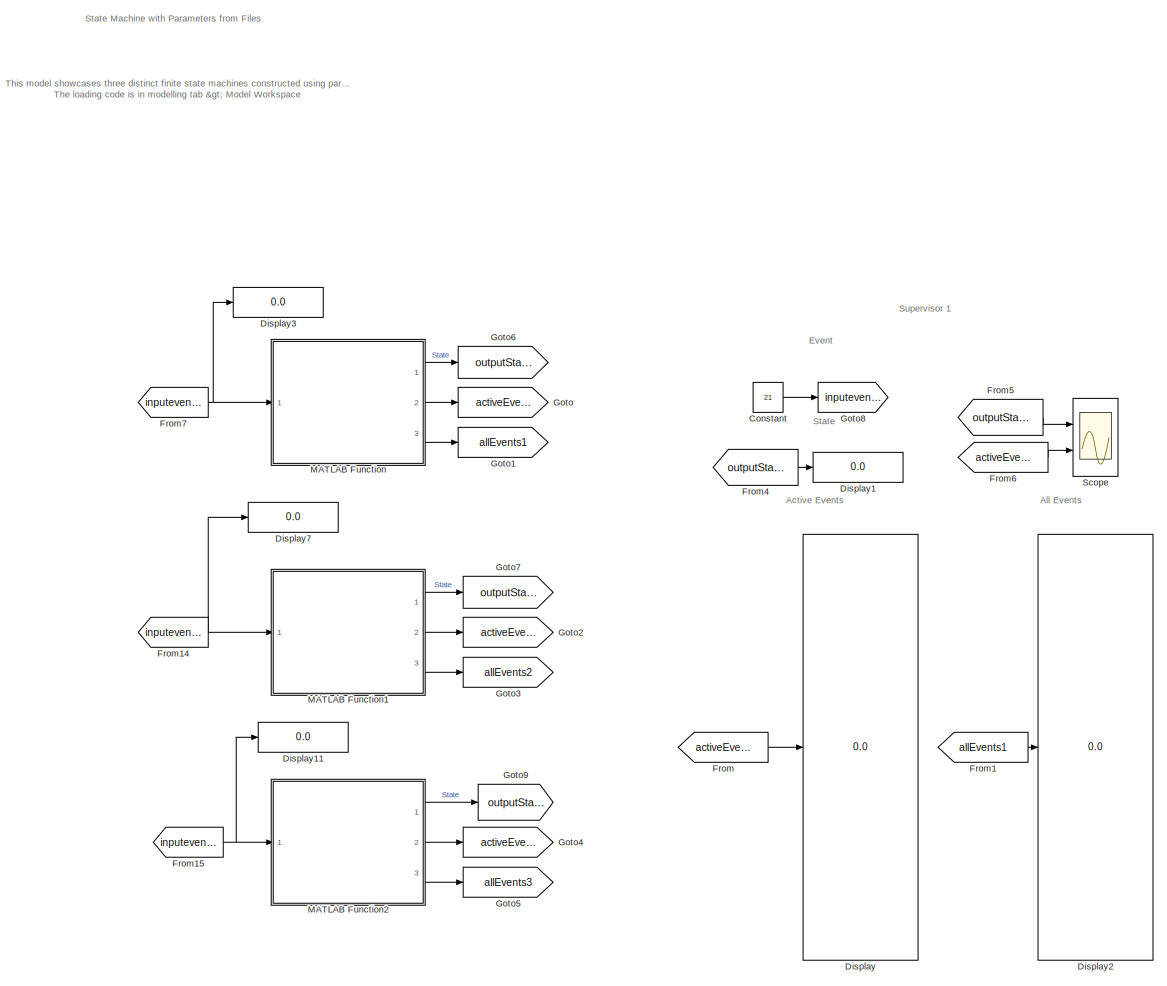
[diagram: root canvas - part 1/2, left side, full height]
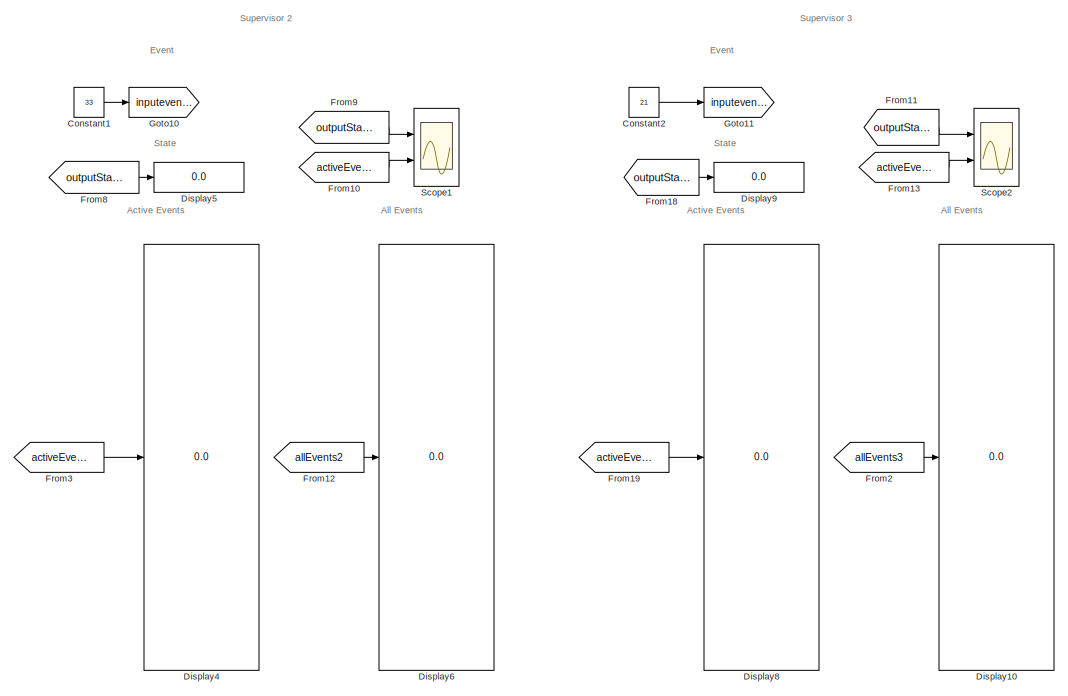
[diagram: root canvas - part 2/2, middle right region]
MODEL slx_2cbc67e93fb0
KIND model
CONFIG AbsTol = auto
CONFIG EnableMultiTasking = off
CONFIG FixedStep = auto
CONFIG MaxStep = auto
CONFIG MinStep = auto
CONFIG RelTol = 1e-3
CONFIG SampleTimeConstraint = Unconstrained
CONFIG SolverName = VariableStepAuto
CONFIG StartTime = 0.0
CONFIG StopTime = inf
WORKSPACE source: MATLAB code (in-file)
WORKSPACE code: addpath model
WORKSPACE code: addpath utils
WORKSPACE utils = StateMachineUtils
WORKSPACE utils = utils.loadEventsInAds('resources/tct/ALLEVENT.ADS')
WORKSPACE utils = utils.loadDisabledEventsInPdt('resources/tct/supervisor1/DATA_SIMSUP1_MG1.PDT')
WORKSPACE utils = utils.loadTransitionsInAds('resources/tct/supervisor1/SIMSUP1_MG1.ADS')
WORKSPACE encodedStates1 = StateEncoder.encode(utils.statesArray)
WORKSPACE transitions1 = utils.transitions
WORKSPACE allEvents1 = utils.eventsArray
WORKSPACE utils2 = StateMachineUtils
WORKSPACE utils2 = utils2.loadEventsInAds('resources/tct/ALLEVENT.ADS')
WORKSPACE utils2 = utils2.loadDisabledEventsInPdt('resources/tct/supervisor2/DATA_SIMSUP2_MG1.PDT')
WORKSPACE utils2 = utils2.loadTransitionsInAds('resources/tct/supervisor2/SIMSUP2_MG1.ADS')
WORKSPACE encodedStates2 = StateEncoder.encode(utils2.statesArray)
WORKSPACE transitions2 = utils2.transitions
WORKSPACE allEvents2 = utils2.eventsArray
WORKSPACE utils3 = StateMachineUtils
WORKSPACE utils3 = utils3.loadEventsInAds('resources/tct/ALLEVENT.ADS')
WORKSPACE utils3 = utils3.loadDisabledEventsInPdt('resources/tct/supervisor3/DATA_SIMSUP3_MG1.PDT')
WORKSPACE utils3 = utils3.loadTransitionsInAds('resources/tct/supervisor3/SIMSUP3_MG1.ADS')
WORKSPACE encodedStates3 = StateEncoder.encode(utils3.statesArray)
WORKSPACE transitions3 = utils3.transitions
WORKSPACE allEvents3 = utils3.eventsArray
BLOCK [Constant] Constant
  Value = 21
BLOCK [Constant] Constant1
  Value = 33
BLOCK [Constant] Constant2
  Value = 21
BLOCK [Display] Display
  Decimation = 1
  Ports = [1]
BLOCK [Display] Display1
  Decimation = 1
  Ports = [1]
BLOCK [Display] Display10
  Decimation = 1
  Ports = [1]
BLOCK [Display] Display11
  Decimation = 1
  Ports = [1]
BLOCK [Display] Display2
  Decimation = 1
  Ports = [1]
BLOCK [Display] Display3
  Decimation = 1
  Ports = [1]
BLOCK [Display] Display4
  Decimation = 1
  Ports = [1]
BLOCK [Display] Display5
  Decimation = 1
  Ports = [1]
BLOCK [Display] Display6
  Decimation = 1
  Ports = [1]
BLOCK [Display] Display7
  Decimation = 1
  Ports = [1]
BLOCK [Display] Display8
  Decimation = 1
  Ports = [1]
BLOCK [Display] Display9
  Decimation = 1
  Ports = [1]
BLOCK [From] From
  GotoTag = activeEvents1
BLOCK [From] From1
  GotoTag = allEvents1
BLOCK [From] From10
  GotoTag = activeEvents2
BLOCK [From] From11
  GotoTag = outputState3
BLOCK [From] From12
  GotoTag = allEvents2
BLOCK [From] From13
  GotoTag = activeEvents3
BLOCK [From] From14
  GotoTag = inputevent2
BLOCK [From] From15
  GotoTag = inputevent3
BLOCK [From] From18
  GotoTag = outputState3
BLOCK [From] From19
  GotoTag = activeEvents3
BLOCK [From] From2
  GotoTag = allEvents3
BLOCK [From] From3
  GotoTag = activeEvents2
BLOCK [From] From4
  GotoTag = outputState1
BLOCK [From] From5
  GotoTag = outputState1
BLOCK [From] From6
  GotoTag = activeEvents1
BLOCK [From] From7
  GotoTag = inputevent1
BLOCK [From] From8
  GotoTag = outputState2
BLOCK [From] From9
  GotoTag = outputState2
BLOCK [Goto] Goto
  GotoTag = activeEvents1
BLOCK [Goto] Goto1
  GotoTag = allEvents1
BLOCK [Goto] Goto10
  GotoTag = inputevent2
BLOCK [Goto] Goto11
  GotoTag = inputevent3
BLOCK [Goto] Goto2
  GotoTag = activeEvents2
BLOCK [Goto] Goto3
  GotoTag = allEvents2
BLOCK [Goto] Goto4
  GotoTag = activeEvents3
BLOCK [Goto] Goto5
  GotoTag = allEvents3
BLOCK [Goto] Goto6
  GotoTag = outputState1
BLOCK [Goto] Goto7
  GotoTag = outputState2
BLOCK [Goto] Goto8
  GotoTag = inputevent1
BLOCK [Goto] Goto9
  GotoTag = outputState3
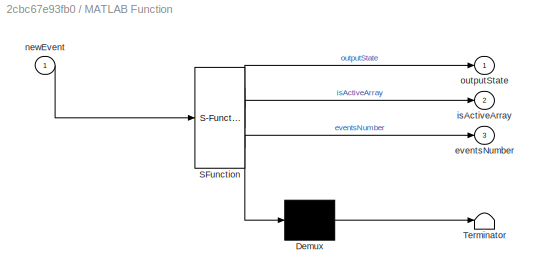
BLOCK [SubSystem] MATLAB Function
  ErrorFcn = Stateflow.Translate.translate
  PermitHierarchicalResolution = ExplicitOnly
  Ports = [1, 3]
  RequestExecContextInheritance = off
  SFBlockType = MATLAB Function
  TreatAsAtomicUnit = on
BLOCK [Demux] MATLAB Function/ Demux 
  Outputs = 1
  Ports = [1, 1]
BLOCK [S-Function] MATLAB Function/ SFunction 
  EnableBusSupport = on
  FunctionName = sf_sfun
  Parameters = allEvents1,encodedStates1,transitions1
  PortCounts = [1 4]
  Ports = [1, 4]
  SFcnIsStateOwnerBlock = off
  SFunctionDeploymentMode = off
  Tag = Stateflow S-Function 2
BLOCK [Terminator] MATLAB Function/ Terminator 
BLOCK [Outport] MATLAB Function/eventsNumber
  Port = 3
BLOCK [Outport] MATLAB Function/isActiveArray
  Port = 2
BLOCK [Inport] MATLAB Function/newEvent
BLOCK [Outport] MATLAB Function/outputState
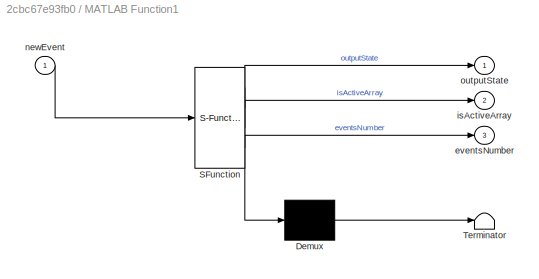
BLOCK [SubSystem] MATLAB Function1
  ErrorFcn = Stateflow.Translate.translate
  PermitHierarchicalResolution = ExplicitOnly
  Ports = [1, 3]
  RequestExecContextInheritance = off
  SFBlockType = MATLAB Function
  TreatAsAtomicUnit = on
BLOCK [Demux] MATLAB Function1/ Demux 
  Outputs = 1
  Ports = [1, 1]
BLOCK [S-Function] MATLAB Function1/ SFunction 
  EnableBusSupport = on
  FunctionName = sf_sfun
  Parameters = allEvents2,encodedStates2,transitions2
  PortCounts = [1 4]
  Ports = [1, 4]
  SFcnIsStateOwnerBlock = off
  SFunctionDeploymentMode = off
  Tag = Stateflow S-Function 1
BLOCK [Terminator] MATLAB Function1/ Terminator 
BLOCK [Outport] MATLAB Function1/eventsNumber
  Port = 3
BLOCK [Outport] MATLAB Function1/isActiveArray
  Port = 2
BLOCK [Inport] MATLAB Function1/newEvent
BLOCK [Outport] MATLAB Function1/outputState
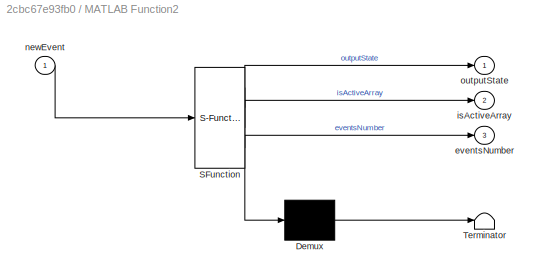
BLOCK [SubSystem] MATLAB Function2
  ErrorFcn = Stateflow.Translate.translate
  PermitHierarchicalResolution = ExplicitOnly
  Ports = [1, 3]
  RequestExecContextInheritance = off
  SFBlockType = MATLAB Function
  TreatAsAtomicUnit = on
BLOCK [Demux] MATLAB Function2/ Demux 
  Outputs = 1
  Ports = [1, 1]
BLOCK [S-Function] MATLAB Function2/ SFunction 
  EnableBusSupport = on
  FunctionName = sf_sfun
  Parameters = allEvents3,encodedStates3,transitions3
  PortCounts = [1 4]
  Ports = [1, 4]
  SFcnIsStateOwnerBlock = off
  SFunctionDeploymentMode = off
  Tag = Stateflow S-Function 3
BLOCK [Terminator] MATLAB Function2/ Terminator 
BLOCK [Outport] MATLAB Function2/eventsNumber
  Port = 3
BLOCK [Outport] MATLAB Function2/isActiveArray
  Port = 2
BLOCK [Inport] MATLAB Function2/newEvent
BLOCK [Outport] MATLAB Function2/outputState
BLOCK [Scope] Scope
  Floating = off
  NumInputPorts = 2
  Ports = [2]
  ScopeSpecificationString = Simulink.scopes.TimeScopeBlockCfg('CurrentConfiguration', extmgr.ConfigurationSet(extmgr.Configuration('Core','General UI',true),extmgr.Configuration('Core','Source UI',true),extmgr.Configuration('Sources','WiredSimulink',true),extmgr.Configuration('Visuals','Time Domain',true,'SerializedDisplays',{struct('MinYLimReal','-1.00000','MaxYLimReal','1.00000','YLabelReal','','MinYLimMag','0.00000','MaxY...<+2477ch>
BLOCK [Scope] Scope1
  Floating = off
  NumInputPorts = 2
  Ports = [2]
  ScopeSpecificationString = Simulink.scopes.TimeScopeBlockCfg('CurrentConfiguration', extmgr.ConfigurationSet(extmgr.Configuration('Core','General UI',true),extmgr.Configuration('Core','Source UI',true),extmgr.Configuration('Sources','WiredSimulink',true,'DataLoggingVariableName','ScopeData1'),extmgr.Configuration('Visuals','Time Domain',true,'SerializedDisplays',{struct('MinYLimReal','-1.00000','MaxYLimReal','1.00000','YLab...<+2038ch>
BLOCK [Scope] Scope2
  Floating = off
  NumInputPorts = 2
  Ports = [2]
  ScopeSpecificationString = Simulink.scopes.TimeScopeBlockCfg('CurrentConfiguration', extmgr.ConfigurationSet(extmgr.Configuration('Core','General UI',true),extmgr.Configuration('Core','Source UI',true),extmgr.Configuration('Sources','WiredSimulink',true,'DataLoggingVariableName','ScopeData2'),extmgr.Configuration('Visuals','Time Domain',true,'SerializedDisplays',{struct('MinYLimReal','-1.00000','MaxYLimReal','1.00000','YLab...<+2038ch>
ANNOTATION (root): This model showcases three distinct finite state machines constructed using parameters loaded from files. The objective is to automatically generate state machines within the Matlab function block based on specifications, eliminating the need for manual design using the StateFlow app. The loading code is in modelling tab > Model Workspace
ANNOTATION (root): State Machine with Parameters from Files
ANNOTATION (root): Active Events
ANNOTATION (root): All Events
ANNOTATION (root): Event
ANNOTATION (root): State
ANNOTATION (root): Supervisor 1
ANNOTATION (root): Supervisor 2
ANNOTATION (root): Supervisor 3
LINE Constant1:1 -> Goto10:1
LINE Constant2:1 -> Goto11:1
LINE Constant:1 -> Goto8:1
LINE From10:1 -> Scope1:2
LINE From11:1 -> Scope2:1
LINE From12:1 -> Display6:1
LINE From13:1 -> Scope2:2
NET From14:1 -> Display7:1, MATLAB Function1:1
NET From15:1 -> Display11:1, MATLAB Function2:1
LINE From18:1 -> Display9:1
LINE From19:1 -> Display8:1
LINE From1:1 -> Display2:1
LINE From2:1 -> Display10:1
LINE From3:1 -> Display4:1
LINE From4:1 -> Display1:1
LINE From5:1 -> Scope:1
LINE From6:1 -> Scope:2
NET From7:1 -> Display3:1, MATLAB Function:1
LINE From8:1 -> Display5:1
LINE From9:1 -> Scope1:1
LINE From:1 -> Display:1
LINE MATLAB Function1:1 -> Goto7:1
LINE MATLAB Function1:2 -> Goto2:1
LINE MATLAB Function1:3 -> Goto3:1
LINE MATLAB Function2:1 -> Goto9:1
LINE MATLAB Function2:2 -> Goto4:1
LINE MATLAB Function2:3 -> Goto5:1
LINE MATLAB Function:1 -> Goto6:1
LINE MATLAB Function:2 -> Goto:1
LINE MATLAB Function:3 -> Goto1:1
note: NET lines group one-source signal fan-out (src -> all destinations, sorted); 1:1 wires keep LINE
CHART MATLAB Function1 states=1 transitions=1
  STATE_LABEL 'eML_blk_kernel()'
  STATE_LABEL 'SCRIPT:\nfunction [outputState, isActiveArray, eventsNumber] = supervisor1(newEvent, allEvents2, transitions2, encodedStates2)\n% State Machine with parameters from files.\n\n% Initialize a persistent object. Its value will not be erased as this\n% block finishes.\npersistent stateMachine\n\n% Assign the persistent object to the StateMachine class with data passed\n% as parameters.\nif (isempty(stateMachine...<+340ch>'
CHART MATLAB Function states=1 transitions=1
  STATE_LABEL 'eML_blk_kernel()'
  STATE_LABEL 'SCRIPT:\nfunction [outputState, isActiveArray, eventsNumber] = supervisor1(newEvent, allEvents1, transitions1, encodedStates1)\n% State Machine with parameters from files.\n\n% Initialize a persistent object. Its value will not be erased as this\n% block finishes.\npersistent stateMachine\n\n% Assign the persistent object to the StateMachine class with data passed\n% as parameters.\nif (isempty(stateMachine...<+340ch>'
CHART MATLAB Function2 states=1 transitions=1
  STATE_LABEL 'eML_blk_kernel()'
  STATE_LABEL 'SCRIPT:\nfunction [outputState, isActiveArray, eventsNumber] = supervisor1(newEvent, allEvents3, transitions3, encodedStates3)\n% State Machine with parameters from files.\n\n% Initialize a persistent object. Its value will not be erased as this\n% block finishes.\npersistent stateMachine\n\n% Assign the persistent object to the StateMachine class with data passed\n% as parameters.\nif (isempty(stateMachine...<+340ch>'
CHART  states=0 transitions=0
CHART  states=0 transitions=0
CHART  states=0 transitions=0
